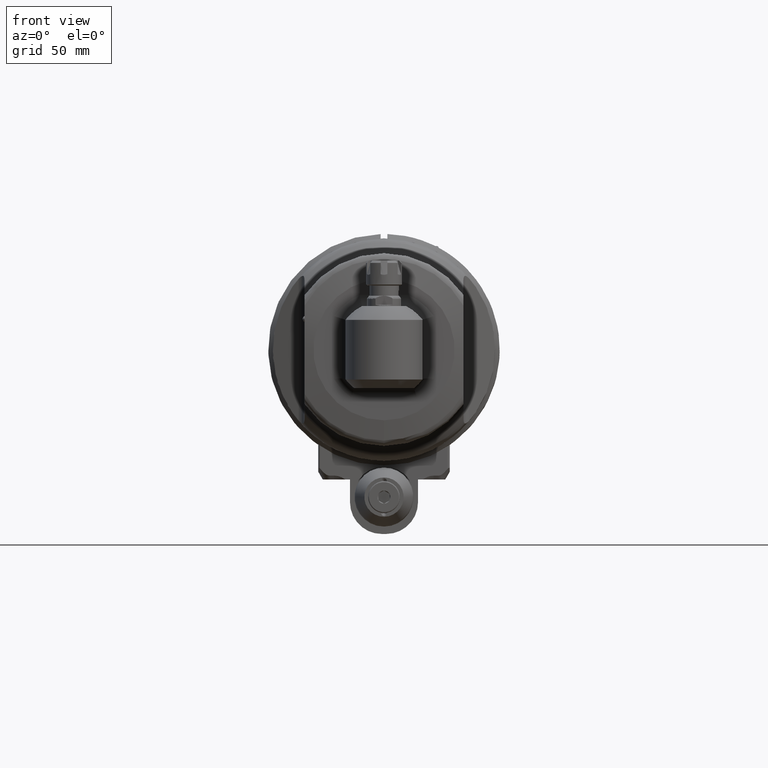
[diagram: clean part render]
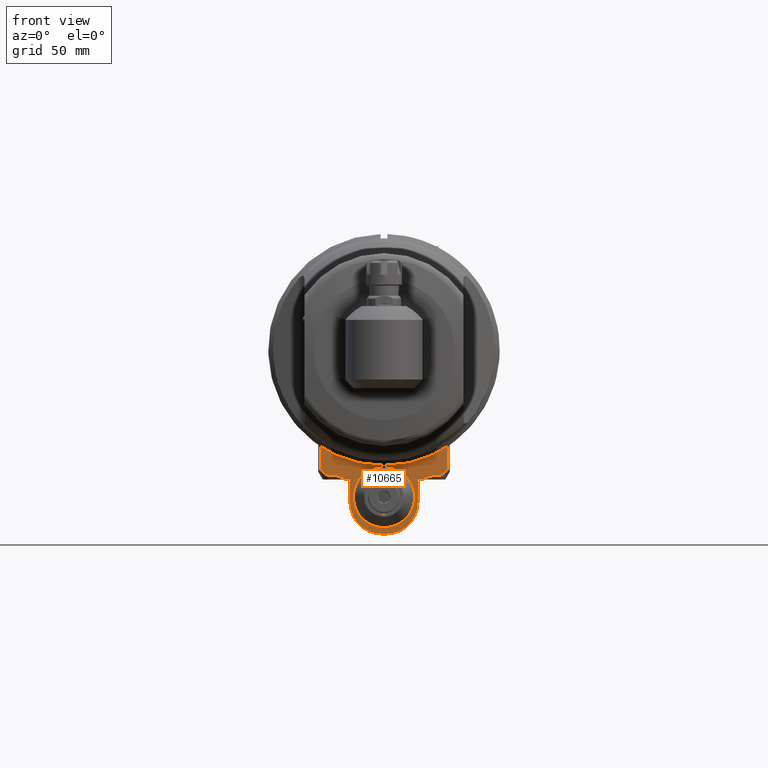
[diagram: same view with one face highlighted and labeled with its STEP entity id]
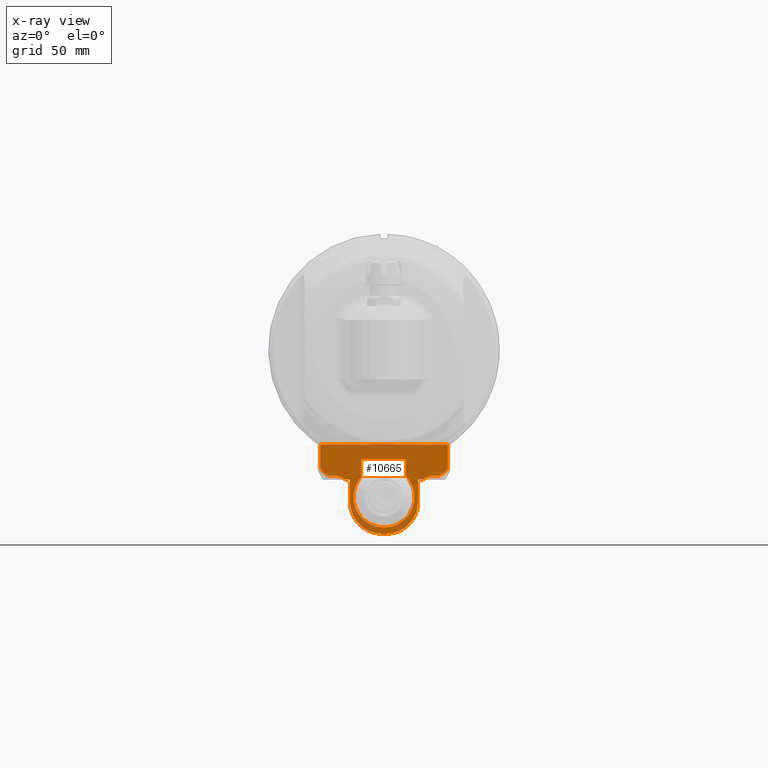
[diagram: x-ray of the same camera — body ghosted, the highlighted face saturated]
A machine part, front view. The second image highlights one B-rep face of the part: STEP entity #10665.
The next image is the same camera in x-ray: the body ghosted, the highlighted face saturated — about 1% of this face is hidden behind the body in this view.
In plain terms, the highlighted planar face has unit normal (0, 1, 0).
Its self-contained STEP definition (entity closure, byte-faithful):
#327=(
BOUNDED_CURVE()
B_SPLINE_CURVE(2,(#19485,#19486,#19487),.UNSPECIFIED.,.F.,.F.)
B_SPLINE_CURVE_WITH_KNOTS((3,3),(-4.80050213228872,-3.63760015971074),
 .UNSPECIFIED.)
CURVE()
GEOMETRIC_REPRESENTATION_ITEM()
RATIONAL_B_SPLINE_CURVE((1.57735025800116,1.64307315092241,1.64307315092241))
REPRESENTATION_ITEM('')
);
#328=(
BOUNDED_CURVE()
B_SPLINE_CURVE(2,(#19503,#19504,#19505),.UNSPECIFIED.,.F.,.F.)
B_SPLINE_CURVE_WITH_KNOTS((3,3),(-3.63760015971074,-2.47469818713276),
 .UNSPECIFIED.)
CURVE()
GEOMETRIC_REPRESENTATION_ITEM()
RATIONAL_B_SPLINE_CURVE((1.64307315092241,1.64307315092241,1.57735025800116))
REPRESENTATION_ITEM('')
);
#329=(
BOUNDED_CURVE()
B_SPLINE_CURVE(2,(#19509,#19510,#19511),.UNSPECIFIED.,.F.,.F.)
B_SPLINE_CURVE_WITH_KNOTS((3,3),(0.802084003550109,1.89472960778239),
 .UNSPECIFIED.)
CURVE()
GEOMETRIC_REPRESENTATION_ITEM()
RATIONAL_B_SPLINE_CURVE((1.71135239382398,2.06578511985151,2.06578511985151))
REPRESENTATION_ITEM('')
);
#330=(
BOUNDED_CURVE()
B_SPLINE_CURVE(2,(#19516,#19517,#19518),.UNSPECIFIED.,.F.,.F.)
B_SPLINE_CURVE_WITH_KNOTS((3,3),(1.89472960778249,2.98737521183054),
 .UNSPECIFIED.)
CURVE()
GEOMETRIC_REPRESENTATION_ITEM()
RATIONAL_B_SPLINE_CURVE((2.06578511985158,2.06578511985158,1.71135239394358))
REPRESENTATION_ITEM('')
);
#610=FACE_BOUND('',#2450,.T.);
#1029=CIRCLE('',#11760,14.);
#1030=CIRCLE('',#11761,14.);
#1031=CIRCLE('',#11762,13.5);
#1760=FACE_OUTER_BOUND('',#2449,.T.);
#2449=EDGE_LOOP('',(#9193,#9194,#9195,#9196,#9197,#9198,#9199,#9200,#9201,
#9202,#9203,#9204,#9205,#9206,#9207,#9208));
#2450=EDGE_LOOP('',(#9209));
#3179=LINE('',#19451,#3909);
#3188=LINE('',#19489,#3918);
#3189=LINE('',#19491,#3919);
#3190=LINE('',#19495,#3920);
#3191=LINE('',#19499,#3921);
#3192=LINE('',#19501,#3922);
#3193=LINE('',#19507,#3923);
#3194=LINE('',#19512,#3924);
#3195=LINE('',#19514,#3925);
#3196=LINE('',#19519,#3926);
#3909=VECTOR('',#14339,56.);
#3918=VECTOR('',#14366,2.000001393619);
#3919=VECTOR('',#14367,10.);
#3920=VECTOR('',#14370,2.);
#3921=VECTOR('',#14373,10.);
#3922=VECTOR('',#14374,2.000001393619);
#3923=VECTOR('',#14375,2.);
#3924=VECTOR('',#14376,10.89819431263);
#3925=VECTOR('',#14377,10.89819431377);
#3926=VECTOR('',#14378,2.);
#4896=VERTEX_POINT('',#19449);
#4897=VERTEX_POINT('',#19450);
#4912=VERTEX_POINT('',#19483);
#4913=VERTEX_POINT('',#19484);
#4914=VERTEX_POINT('',#19488);
#4915=VERTEX_POINT('',#19490);
#4916=VERTEX_POINT('',#19492);
#4917=VERTEX_POINT('',#19494);
#4918=VERTEX_POINT('',#19496);
#4919=VERTEX_POINT('',#19498);
#4920=VERTEX_POINT('',#19500);
#4921=VERTEX_POINT('',#19502);
#4922=VERTEX_POINT('',#19506);
#4923=VERTEX_POINT('',#19508);
#4924=VERTEX_POINT('',#19513);
#4925=VERTEX_POINT('',#19515);
#4926=VERTEX_POINT('',#19520);
#6358=EDGE_CURVE('',#4896,#4897,#3179,.T.);
#6375=EDGE_CURVE('',#4912,#4913,#327,.T.);
#6376=EDGE_CURVE('',#4912,#4914,#3188,.T.);
#6377=EDGE_CURVE('',#4915,#4914,#3189,.T.);
#6378=EDGE_CURVE('',#4915,#4916,#1029,.T.);
#6379=EDGE_CURVE('',#4916,#4917,#3190,.T.);
#6380=EDGE_CURVE('',#4917,#4918,#1030,.T.);
#6381=EDGE_CURVE('',#4919,#4918,#3191,.T.);
#6382=EDGE_CURVE('',#4920,#4919,#3192,.T.);
#6383=EDGE_CURVE('',#4921,#4920,#328,.T.);
#6384=EDGE_CURVE('',#4922,#4921,#3193,.T.);
#6385=EDGE_CURVE('',#4923,#4922,#329,.T.);
#6386=EDGE_CURVE('',#4897,#4923,#3194,.T.);
#6387=EDGE_CURVE('',#4924,#4896,#3195,.T.);
#6388=EDGE_CURVE('',#4925,#4924,#330,.T.);
#6389=EDGE_CURVE('',#4925,#4913,#3196,.T.);
#6390=EDGE_CURVE('',#4926,#4926,#1031,.T.);
#9193=ORIENTED_EDGE('',*,*,#6375,.F.);
#9194=ORIENTED_EDGE('',*,*,#6376,.T.);
#9195=ORIENTED_EDGE('',*,*,#6377,.F.);
#9196=ORIENTED_EDGE('',*,*,#6378,.T.);
#9197=ORIENTED_EDGE('',*,*,#6379,.T.);
#9198=ORIENTED_EDGE('',*,*,#6380,.T.);
#9199=ORIENTED_EDGE('',*,*,#6381,.F.);
#9200=ORIENTED_EDGE('',*,*,#6382,.F.);
#9201=ORIENTED_EDGE('',*,*,#6383,.F.);
#9202=ORIENTED_EDGE('',*,*,#6384,.F.);
#9203=ORIENTED_EDGE('',*,*,#6385,.F.);
#9204=ORIENTED_EDGE('',*,*,#6386,.F.);
#9205=ORIENTED_EDGE('',*,*,#6358,.F.);
#9206=ORIENTED_EDGE('',*,*,#6387,.F.);
#9207=ORIENTED_EDGE('',*,*,#6388,.F.);
#9208=ORIENTED_EDGE('',*,*,#6389,.T.);
#9209=ORIENTED_EDGE('',*,*,#6390,.T.);
#10114=PLANE('',#11759);
#10665=ADVANCED_FACE('',(#1760,#610),#10114,.F.);
#11759=AXIS2_PLACEMENT_3D('',#19482,#14364,#14365);
#11760=AXIS2_PLACEMENT_3D('',#19493,#14368,#14369);
#11761=AXIS2_PLACEMENT_3D('',#19497,#14371,#14372);
#11762=AXIS2_PLACEMENT_3D('',#19521,#14379,#14380);
#14339=DIRECTION('',(1.,0.,0.));
#14364=DIRECTION('center_axis',(0.,1.,0.));
#14365=DIRECTION('ref_axis',(0.,0.,1.));
#14366=DIRECTION('',(1.,-2.131626721942E-13,0.));
#14367=DIRECTION('',(0.,0.,1.));
#14368=DIRECTION('center_axis',(0.,-1.,0.));
#14369=DIRECTION('ref_axis',(-1.,0.,0.));
#14370=DIRECTION('',(1.,0.,0.));
#14371=DIRECTION('center_axis',(0.,-1.,0.));
#14372=DIRECTION('ref_axis',(0.,0.,-1.));
#14373=DIRECTION('',(0.,0.,-1.));
#14374=DIRECTION('',(-1.,-2.131626721942E-13,0.));
#14375=DIRECTION('',(-1.,0.,2.84217094304E-14));
#14376=DIRECTION('',(1.193516107229E-9,6.713915828753E-11,-1.));
#14377=DIRECTION('',(1.102705435575E-9,-6.203022672988E-11,1.));
#14378=DIRECTION('',(1.,0.,2.84217094304E-14));
#14379=DIRECTION('center_axis',(0.,1.,0.));
#14380=DIRECTION('ref_axis',(0.,0.,-1.));
#19449=CARTESIAN_POINT('',(-28.,5.,-41.75));
#19450=CARTESIAN_POINT('',(28.,5.,-41.75));
#19451=CARTESIAN_POINT('',(-28.,5.,-41.75));
#19482=CARTESIAN_POINT('Origin',(0.,5.,-40.75));
#19483=CARTESIAN_POINT('',(-17.00000139362,5.,-57.25));
#19484=CARTESIAN_POINT('',(-22.00000023085,5.,-55.51795003158));
#19485=CARTESIAN_POINT('Ctrl Pts',(-17.000001393623,5.,-57.2499999999949));
#19486=CARTESIAN_POINT('Ctrl Pts',(-19.6000007385943,5.,-55.5179500315845));
#19487=CARTESIAN_POINT('Ctrl Pts',(-22.00000023085,5.,-55.5179500315845));
#19488=CARTESIAN_POINT('',(-15.,5.,-57.25));
#19489=CARTESIAN_POINT('',(-17.00000139362,5.,-57.25));
#19490=CARTESIAN_POINT('',(-15.,5.,-67.25));
#19491=CARTESIAN_POINT('',(-15.,5.,-67.25));
#19492=CARTESIAN_POINT('',(-1.,5.,-81.25));
#19493=CARTESIAN_POINT('Origin',(-1.,5.,-67.25));
#19494=CARTESIAN_POINT('',(1.,5.,-81.25));
#19495=CARTESIAN_POINT('',(-1.,5.,-81.25));
#19496=CARTESIAN_POINT('',(15.,5.,-67.25));
#19497=CARTESIAN_POINT('Origin',(1.,5.,-67.25));
#19498=CARTESIAN_POINT('',(15.,5.,-57.25));
#19499=CARTESIAN_POINT('',(15.,5.,-57.25));
#19500=CARTESIAN_POINT('',(17.00000139362,5.,-57.25));
#19501=CARTESIAN_POINT('',(17.00000139362,5.,-57.25));
#19502=CARTESIAN_POINT('',(22.00000023085,5.,-55.51795003158));
#19503=CARTESIAN_POINT('Ctrl Pts',(22.00000023085,5.,-55.5179500315845));
#19504=CARTESIAN_POINT('Ctrl Pts',(19.6000007385943,5.,-55.5179500315845));
#19505=CARTESIAN_POINT('Ctrl Pts',(17.000001393623,5.,-57.2499999999949));
#19506=CARTESIAN_POINT('',(24.00000023085,5.,-55.51795003158));
#19507=CARTESIAN_POINT('',(24.00000023085,5.,-55.51795003158));
#19508=CARTESIAN_POINT('',(28.00000001301,5.00000000073,-52.64819431263));
#19509=CARTESIAN_POINT('Ctrl Pts',(28.0000000125725,5.00000000000001,-52.6481943122728));
#19510=CARTESIAN_POINT('Ctrl Pts',(25.6568543576331,5.00000000000001,-55.5179500315753));
#19511=CARTESIAN_POINT('Ctrl Pts',(24.00000023085,5.00000000000001,-55.5179500315753));
#19512=CARTESIAN_POINT('',(28.,5.,-41.75));
#19513=CARTESIAN_POINT('',(-28.00000001202,5.00000000068,-52.64819431377));
#19514=CARTESIAN_POINT('',(-28.00000001202,5.00000000068,-52.64819431377));
#19515=CARTESIAN_POINT('',(-24.00000023085,5.,-55.51795003158));
#19516=CARTESIAN_POINT('Ctrl Pts',(-24.00000023085,5.,-55.5179500315762));
#19517=CARTESIAN_POINT('Ctrl Pts',(-25.6568543573537,5.,-55.5179500315762));
#19518=CARTESIAN_POINT('Ctrl Pts',(-28.0000000116185,5.,-52.6481943134421));
#19519=CARTESIAN_POINT('',(-24.00000023085,5.,-55.51795003158));
#19520=CARTESIAN_POINT('',(0.,5.,-51.5));
#19521=CARTESIAN_POINT('Origin',(0.,5.,-65.));